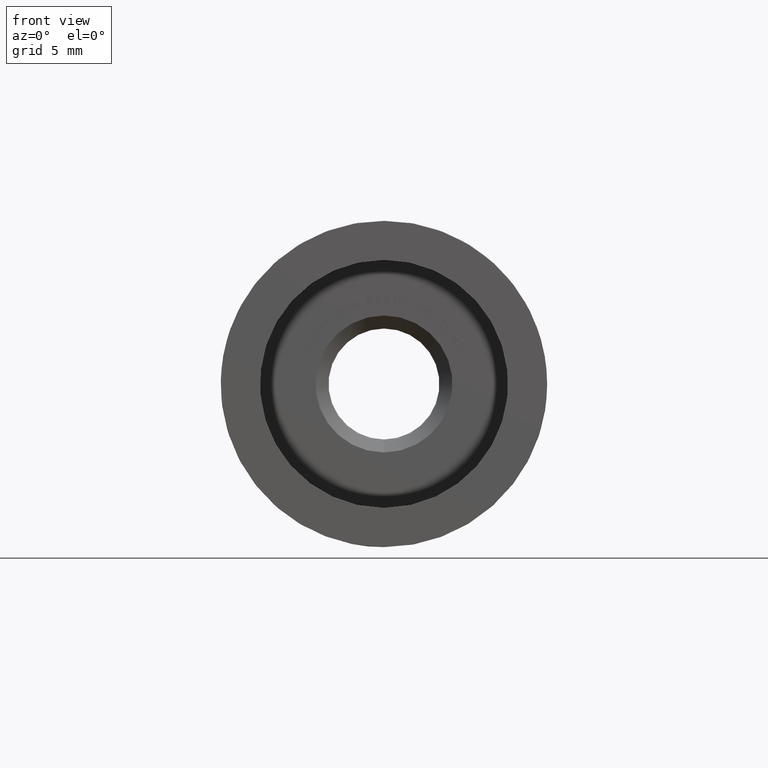
[diagram: clean part render]
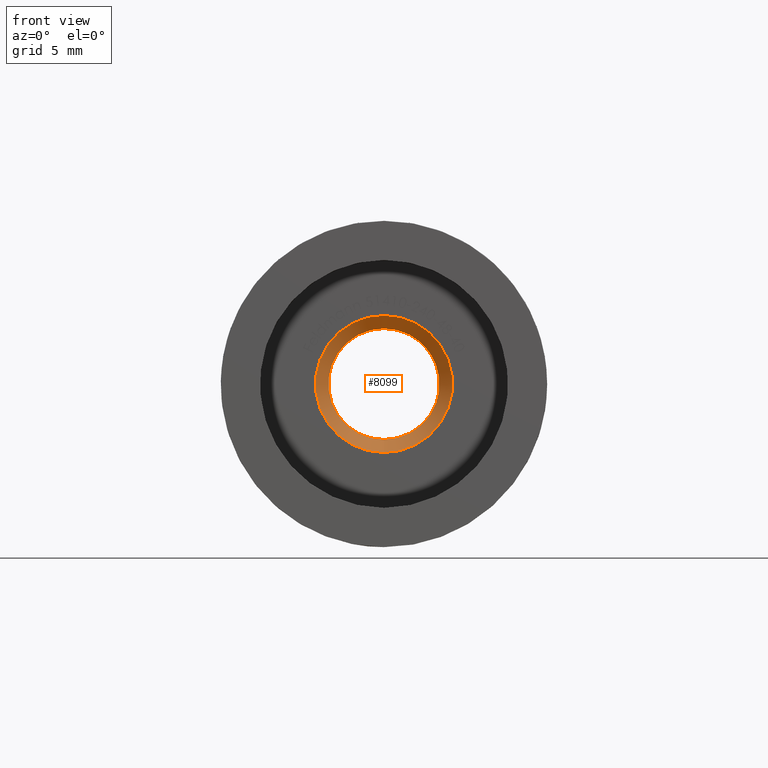
[diagram: same view with one face highlighted and labeled with its STEP entity id]
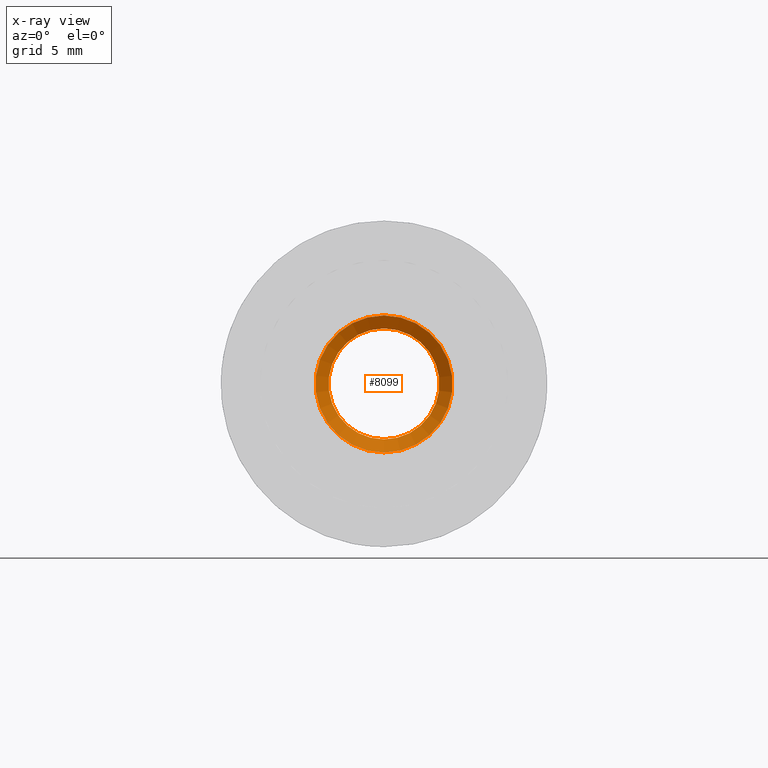
[diagram: x-ray of the same camera — body ghosted, the highlighted face saturated]
A machine part, front view. The second image highlights one B-rep face of the part: STEP entity #8099.
The next image is the same camera in x-ray: the body ghosted, the highlighted face saturated — about 0% of this face is hidden behind the body in this view.
In plain terms, the highlighted conical surface has half-angle 45 deg.
Its self-contained STEP definition (entity closure, byte-faithful):
#219 = CONICAL_SURFACE ( 'NONE', #14084, 4.249999999999991118, 0.7853981633974513876 ) ;
#866 = EDGE_LOOP ( 'NONE', ( #7841 ) ) ;
#981 = FACE_OUTER_BOUND ( 'NONE', #866, .T. ) ;
#1229 = DIRECTION ( 'NONE',  ( 0.000000000000000000, 0.000000000000000000, -1.000000000000000000 ) ) ;
#1251 = AXIS2_PLACEMENT_3D ( 'NONE', #6881, #12577, #11626 ) ;
#1900 = EDGE_CURVE ( 'NONE', #2342, #2342, #15139, .T. ) ;
#2080 = AXIS2_PLACEMENT_3D ( 'NONE', #13020, #7204, #4718 ) ;
#2342 = VERTEX_POINT ( 'NONE', #9626 ) ;
#2766 = CARTESIAN_POINT ( 'NONE',  ( 0.000000000000000000, 21.00000000000000355, -4.249999999999991118 ) ) ;
#3704 = FACE_BOUND ( 'NONE', #12470, .T. ) ;
#4039 = ORIENTED_EDGE ( 'NONE', *, *, #13117, .F. ) ;
#4718 = DIRECTION ( 'NONE',  ( 0.000000000000000000, 0.000000000000000000, -1.000000000000000000 ) ) ;
#5938 = DIRECTION ( 'NONE',  ( 0.000000000000000000, -1.000000000000000000, 0.000000000000000000 ) ) ;
#6881 = CARTESIAN_POINT ( 'NONE',  ( 0.000000000000000000, 21.00000000000000355, 0.000000000000000000 ) ) ;
#7204 = DIRECTION ( 'NONE',  ( -0.000000000000000000, 1.000000000000000000, -0.000000000000000000 ) ) ;
#7841 = ORIENTED_EDGE ( 'NONE', *, *, #1900, .F. ) ;
#8099 = ADVANCED_FACE ( 'NONE', ( #981, #3704 ), #219, .F. ) ;
#9511 = CARTESIAN_POINT ( 'NONE',  ( 0.000000000000000000, 21.00000000000000355, 0.000000000000000000 ) ) ;
#9626 = CARTESIAN_POINT ( 'NONE',  ( 0.000000000000000000, 20.00000000000000355, -5.249999999999997335 ) ) ;
#10745 = VERTEX_POINT ( 'NONE', #2766 ) ;
#11626 = DIRECTION ( 'NONE',  ( 0.000000000000000000, 0.000000000000000000, -1.000000000000000000 ) ) ;
#12470 = EDGE_LOOP ( 'NONE', ( #4039 ) ) ;
#12577 = DIRECTION ( 'NONE',  ( 0.000000000000000000, -1.000000000000000000, 0.000000000000000000 ) ) ;
#13020 = CARTESIAN_POINT ( 'NONE',  ( 0.000000000000000000, 20.00000000000000355, 0.000000000000000000 ) ) ;
#13117 = EDGE_CURVE ( 'NONE', #10745, #10745, #15046, .T. ) ;
#14084 = AXIS2_PLACEMENT_3D ( 'NONE', #9511, #5938, #1229 ) ;
#15046 = CIRCLE ( 'NONE', #1251, 4.249999999999991118 ) ;
#15139 = CIRCLE ( 'NONE', #2080, 5.249999999999997335 ) ;